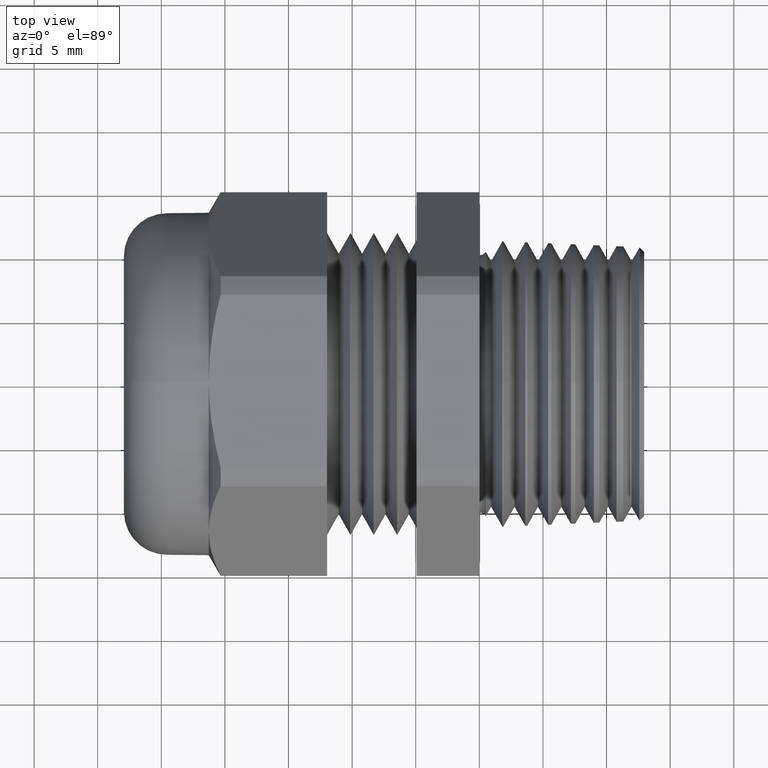
[diagram: clean part render]
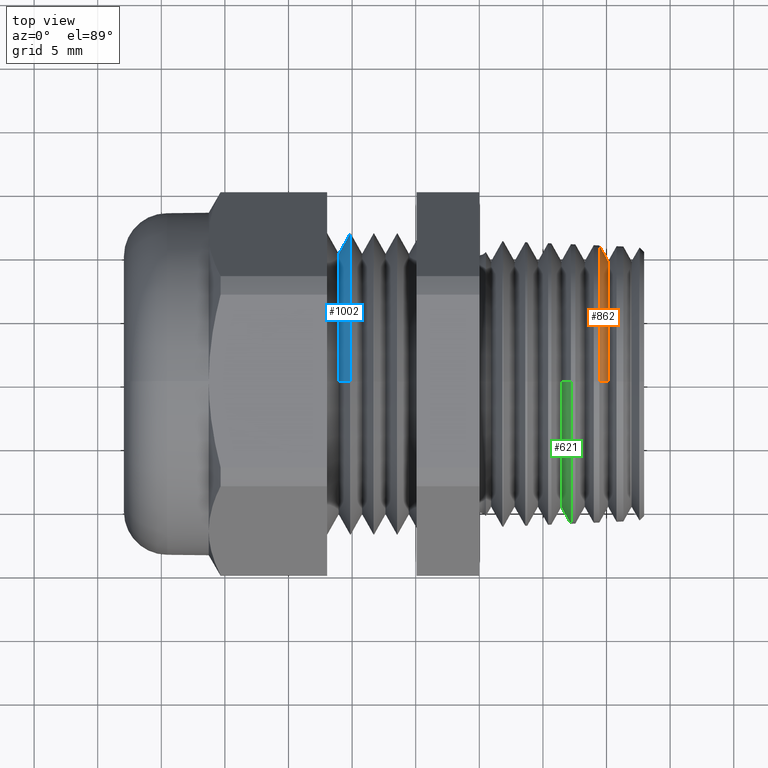
[diagram: same view with three faces highlighted in distinct colors, each labeled with its STEP entity id]
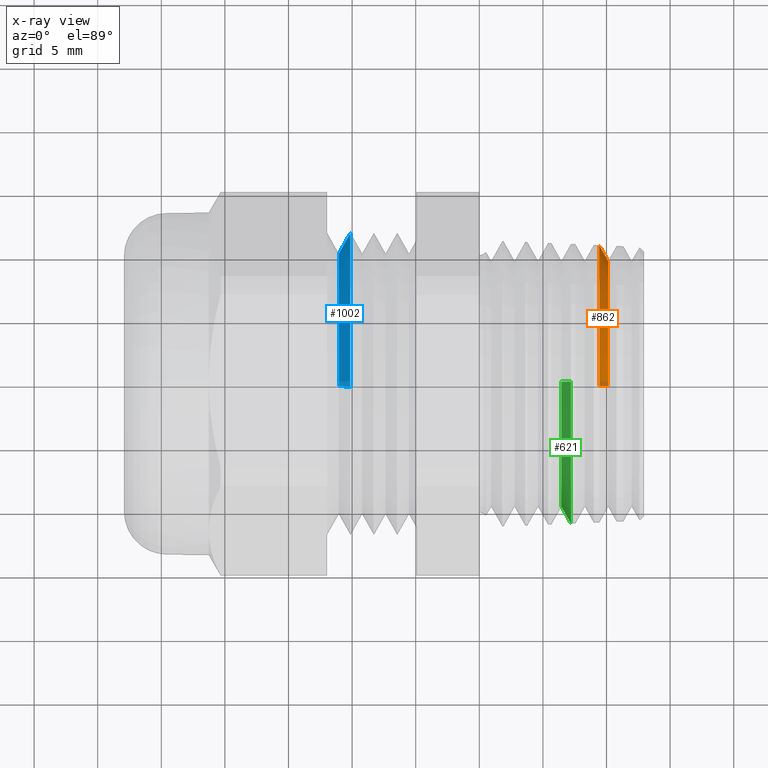
[diagram: x-ray of the same camera — body ghosted, the three highlighted faces saturated]
A machine part, top view with three faces highlighted in distinct colors.
The next image is the same camera in x-ray (body ghosted, the three faces saturated) — at least one of them is partly hidden behind the body in this view.
Their STEP definitions:

[orange] entity #862 — the highlighted conical surface has half-angle 60 deg.
#705 = VERTEX_POINT ( 'NONE', #2373 ) ;
#706 = VERTEX_POINT ( 'NONE', #2372 ) ;
#717 = EDGE_CURVE ( 'NONE', #705, #706, #2418, .T. ) ;
#785 = ORIENTED_EDGE ( 'NONE', *, *, #717, .T. ) ;
#786 = ORIENTED_EDGE ( 'NONE', *, *, #793, .T. ) ;
#787 = VERTEX_POINT ( 'NONE', #2587 ) ;
#793 = EDGE_CURVE ( 'NONE', #706, #787, #2576, .T. ) ;
#850 = ORIENTED_EDGE ( 'NONE', *, *, #851, .T. ) ;
#851 = EDGE_CURVE ( 'NONE', #787, #879, #2657, .T. ) ;
#859 = EDGE_LOOP ( 'NONE', ( #785, #786, #850, #877 ) ) ;
#862 = ADVANCED_FACE ( 'NONE', ( #2703 ), #2698, .T. ) ;
#877 = ORIENTED_EDGE ( 'NONE', *, *, #883, .F. ) ;
#879 = VERTEX_POINT ( 'NONE', #2728 ) ;
#883 = EDGE_CURVE ( 'NONE', #705, #879, #2722, .T. ) ;
#2372 = CARTESIAN_POINT ( 'NONE',  ( 0.3988155841894339700, 4.961415234232701000E-017, -0.3814809735032225800 ) ) ;
#2373 = CARTESIAN_POINT ( 'NONE',  ( 0.3988155841894339700, 0.0000000000000000000, 0.3814809735032225800 ) ) ;
#2415 = DIRECTION ( 'NONE',  ( 0.0000000000000000000, 0.0000000000000000000, 1.000000000000000000 ) ) ;
#2416 = DIRECTION ( 'NONE',  ( -1.000000000000000000, 0.0000000000000000000, 0.0000000000000000000 ) ) ;
#2417 = AXIS2_PLACEMENT_3D ( 'NONE', #2423, #2416, #2415 ) ;
#2418 = CIRCLE ( 'NONE', #2417, 0.3814809735032225800 ) ;
#2423 = CARTESIAN_POINT ( 'NONE',  ( 0.3988155841894339700, 0.0000000000000000000, 0.0000000000000000000 ) ) ;
#2573 = DIRECTION ( 'NONE',  ( -0.4999999999999938400, 1.060575238724911100E-016, -0.8660254037844420400 ) ) ;
#2574 = VECTOR ( 'NONE', #2573, 39.37007874015748900 ) ;
#2575 = CARTESIAN_POINT ( 'NONE',  ( 0.3621428571428571600, 5.449678256205722000E-017, -0.4450000000000000100 ) ) ;
#2576 = LINE ( 'NONE', #2575, #2574 ) ;
#2587 = CARTESIAN_POINT ( 'NONE',  ( 0.3715076957630060700, 5.255681027657015200E-017, -0.4287796237052184900 ) ) ;
#2656 = CARTESIAN_POINT ( 'NONE',  ( 0.3715076957630060700, 0.0000000000000000000, 0.0000000000000000000 ) ) ;
#2657 = CIRCLE ( 'NONE', #2717, 0.4287796237052184900 ) ;
#2694 = DIRECTION ( 'NONE',  ( 0.0000000000000000000, 0.0000000000000000000, 1.000000000000000000 ) ) ;
#2695 = DIRECTION ( 'NONE',  ( -1.000000000000000000, 0.0000000000000000000, 0.0000000000000000000 ) ) ;
#2696 = CARTESIAN_POINT ( 'NONE',  ( 0.3621428571428571600, 0.0000000000000000000, 0.0000000000000000000 ) ) ;
#2697 = AXIS2_PLACEMENT_3D ( 'NONE', #2696, #2695, #2694 ) ;
#2698 = CONICAL_SURFACE ( 'NONE', #2697, 0.4450000000000000100, 1.047197551196604700 ) ;
#2703 = FACE_OUTER_BOUND ( 'NONE', #859, .T. ) ;
#2715 = DIRECTION ( 'NONE',  ( 0.0000000000000000000, 0.0000000000000000000, 1.000000000000000000 ) ) ;
#2716 = DIRECTION ( 'NONE',  ( 1.000000000000000000, 0.0000000000000000000, 0.0000000000000000000 ) ) ;
#2717 = AXIS2_PLACEMENT_3D ( 'NONE', #2656, #2716, #2715 ) ;
#2719 = DIRECTION ( 'NONE',  ( -0.4999999999999938400, 0.0000000000000000000, 0.8660254037844420400 ) ) ;
#2720 = VECTOR ( 'NONE', #2719, 39.37007874015748900 ) ;
#2721 = CARTESIAN_POINT ( 'NONE',  ( 0.3621428571428571600, 0.0000000000000000000, 0.4450000000000000100 ) ) ;
#2722 = LINE ( 'NONE', #2721, #2720 ) ;
#2728 = CARTESIAN_POINT ( 'NONE',  ( 0.3715076957630060700, 0.0000000000000000000, 0.4287796237052184900 ) ) ;

[blue] entity #1002 — the highlighted conical surface has half-angle 60 deg.
#1002 = ADVANCED_FACE ( 'NONE', ( #3002 ), #3001, .T. ) ;
#1003 = EDGE_LOOP ( 'NONE', ( #1057, #1107, #1109, #1047 ) ) ;
#1004 = EDGE_CURVE ( 'NONE', #1005, #1058, #2995, .T. ) ;
#1005 = VERTEX_POINT ( 'NONE', #2991 ) ;
#1043 = EDGE_CURVE ( 'NONE', #1044, #1045, #2266, .T. ) ;
#1044 = VERTEX_POINT ( 'NONE', #3098 ) ;
#1045 = VERTEX_POINT ( 'NONE', #3097 ) ;
#1047 = ORIENTED_EDGE ( 'NONE', *, *, #1048, .F. ) ;
#1048 = EDGE_CURVE ( 'NONE', #1044, #1005, #3096, .T. ) ;
#1057 = ORIENTED_EDGE ( 'NONE', *, *, #1043, .T. ) ;
#1058 = VERTEX_POINT ( 'NONE', #3072 ) ;
#1107 = ORIENTED_EDGE ( 'NONE', *, *, #1108, .T. ) ;
#1108 = EDGE_CURVE ( 'NONE', #1045, #1058, #3180, .T. ) ;
#1109 = ORIENTED_EDGE ( 'NONE', *, *, #1004, .F. ) ;
#2265 = AXIS2_PLACEMENT_3D ( 'NONE', #2525, #2532, #2531 ) ;
#2266 = CIRCLE ( 'NONE', #2265, 0.4045410714285714900 ) ;
#2525 = CARTESIAN_POINT ( 'NONE',  ( -0.4351190642708378000, 0.0000000000000000000, 0.0000000000000000000 ) ) ;
#2531 = DIRECTION ( 'NONE',  ( 0.0000000000000000000, 0.0000000000000000000, -1.000000000000000000 ) ) ;
#2532 = DIRECTION ( 'NONE',  ( 1.000000000000000000, 0.0000000000000000000, 0.0000000000000000000 ) ) ;
#2991 = CARTESIAN_POINT ( 'NONE',  ( -0.3994047952083414300, 5.711752671223256000E-017, -0.4664000000000000400 ) ) ;
#2992 = DIRECTION ( 'NONE',  ( 0.0000000000000000000, 0.0000000000000000000, -1.000000000000000000 ) ) ;
#2993 = DIRECTION ( 'NONE',  ( 1.000000000000000000, 0.0000000000000000000, 0.0000000000000000000 ) ) ;
#2994 = AXIS2_PLACEMENT_3D ( 'NONE', #3000, #2993, #2992 ) ;
#2995 = CIRCLE ( 'NONE', #2994, 0.4664000000000000400 ) ;
#2996 = DIRECTION ( 'NONE',  ( 0.0000000000000000000, 0.0000000000000000000, -1.000000000000000000 ) ) ;
#2997 = DIRECTION ( 'NONE',  ( 1.000000000000000000, 0.0000000000000000000, 0.0000000000000000000 ) ) ;
#2998 = CARTESIAN_POINT ( 'NONE',  ( -0.4351190642708378000, 0.0000000000000000000, 0.0000000000000000000 ) ) ;
#2999 = AXIS2_PLACEMENT_3D ( 'NONE', #2998, #2997, #2996 ) ;
#3000 = CARTESIAN_POINT ( 'NONE',  ( -0.3994047952083414300, 0.0000000000000000000, 0.0000000000000000000 ) ) ;
#3001 = CONICAL_SURFACE ( 'NONE', #2999, 0.4045410714285714900, 1.047197551196594500 ) ;
#3002 = FACE_OUTER_BOUND ( 'NONE', #1003, .T. ) ;
#3072 = CARTESIAN_POINT ( 'NONE',  ( -0.3994047952083414300, 0.0000000000000000000, 0.4664000000000000400 ) ) ;
#3093 = DIRECTION ( 'NONE',  ( 0.5000000000000027800, 0.0000000000000000000, -0.8660254037844369300 ) ) ;
#3094 = VECTOR ( 'NONE', #3093, 39.37007874015748100 ) ;
#3095 = CARTESIAN_POINT ( 'NONE',  ( -0.4351190642708378000, 0.0000000000000000000, -0.4045410714285714900 ) ) ;
#3096 = LINE ( 'NONE', #3095, #3094 ) ;
#3097 = CARTESIAN_POINT ( 'NONE',  ( -0.4351190642708378000, 5.332975976854832300E-017, 0.4045410714285714900 ) ) ;
#3098 = CARTESIAN_POINT ( 'NONE',  ( -0.4351190642708378000, 0.0000000000000000000, -0.4045410714285714900 ) ) ;
#3172 = DIRECTION ( 'NONE',  ( 0.5000000000000027800, 1.060575238724904800E-016, 0.8660254037844369300 ) ) ;
#3173 = VECTOR ( 'NONE', #3172, 39.37007874015748100 ) ;
#3174 = CARTESIAN_POINT ( 'NONE',  ( -0.4351190642708378000, 4.954199282486408100E-017, 0.4045410714285714900 ) ) ;
#3180 = LINE ( 'NONE', #3174, #3173 ) ;

[green] entity #621 — the highlighted conical surface has half-angle 60 deg.
#182 = EDGE_CURVE ( 'NONE', #899, #896, #1527, .T. ) ;
#603 = ORIENTED_EDGE ( 'NONE', *, *, #182, .T. ) ;
#618 = EDGE_CURVE ( 'NONE', #893, #892, #2246, .T. ) ;
#621 = ADVANCED_FACE ( 'NONE', ( #2242 ), #2241, .T. ) ;
#622 = EDGE_LOOP ( 'NONE', ( #623, #624, #625, #603 ) ) ;
#623 = ORIENTED_EDGE ( 'NONE', *, *, #895, .F. ) ;
#624 = ORIENTED_EDGE ( 'NONE', *, *, #618, .F. ) ;
#625 = ORIENTED_EDGE ( 'NONE', *, *, #901, .T. ) ;
#892 = VERTEX_POINT ( 'NONE', #2770 ) ;
#893 = VERTEX_POINT ( 'NONE', #2769 ) ;
#895 = EDGE_CURVE ( 'NONE', #892, #896, #2768, .T. ) ;
#896 = VERTEX_POINT ( 'NONE', #2764 ) ;
#899 = VERTEX_POINT ( 'NONE', #2758 ) ;
#901 = EDGE_CURVE ( 'NONE', #893, #899, #2756, .T. ) ;
#1523 = DIRECTION ( 'NONE',  ( 0.0000000000000000000, 0.0000000000000000000, -1.000000000000000000 ) ) ;
#1524 = DIRECTION ( 'NONE',  ( -1.000000000000000000, 0.0000000000000000000, 0.0000000000000000000 ) ) ;
#1525 = CARTESIAN_POINT ( 'NONE',  ( 0.2834851713742256300, 0.0000000000000000000, 0.0000000000000000000 ) ) ;
#1526 = AXIS2_PLACEMENT_3D ( 'NONE', #1525, #1524, #1523 ) ;
#1527 = CIRCLE ( 'NONE', #1526, 0.4326227701172201700 ) ;
#2236 = DIRECTION ( 'NONE',  ( 0.0000000000000000000, 0.0000000000000000000, -1.000000000000000000 ) ) ;
#2237 = DIRECTION ( 'NONE',  ( 1.000000000000000000, 0.0000000000000000000, 0.0000000000000000000 ) ) ;
#2238 = CARTESIAN_POINT ( 'NONE',  ( 0.2539584413322911200, 0.0000000000000000000, 0.0000000000000000000 ) ) ;
#2239 = AXIS2_PLACEMENT_3D ( 'NONE', #2238, #2237, #2236 ) ;
#2241 = CONICAL_SURFACE ( 'NONE', #2239, 0.3814809735032225800, 1.047197551196596100 ) ;
#2242 = FACE_OUTER_BOUND ( 'NONE', #622, .T. ) ;
#2243 = DIRECTION ( 'NONE',  ( 0.0000000000000000000, 0.0000000000000000000, 1.000000000000000000 ) ) ;
#2244 = DIRECTION ( 'NONE',  ( -1.000000000000000000, 0.0000000000000000000, 0.0000000000000000000 ) ) ;
#2245 = AXIS2_PLACEMENT_3D ( 'NONE', #2251, #2244, #2243 ) ;
#2246 = CIRCLE ( 'NONE', #2245, 0.3814809735032225800 ) ;
#2251 = CARTESIAN_POINT ( 'NONE',  ( 0.2539584413322911200, 0.0000000000000000000, 0.0000000000000000000 ) ) ;
#2753 = DIRECTION ( 'NONE',  ( 0.5000000000000013300, 0.0000000000000000000, -0.8660254037844377100 ) ) ;
#2754 = VECTOR ( 'NONE', #2753, 39.37007874015748900 ) ;
#2755 = CARTESIAN_POINT ( 'NONE',  ( 0.2539584413322911200, 0.0000000000000000000, -0.3814809735032225800 ) ) ;
#2756 = LINE ( 'NONE', #2755, #2754 ) ;
#2758 = CARTESIAN_POINT ( 'NONE',  ( 0.2834851713742256300, 5.298100906623148800E-017, -0.4326227701172201700 ) ) ;
#2764 = CARTESIAN_POINT ( 'NONE',  ( 0.2834851713742256300, 0.0000000000000000000, 0.4326227701172201700 ) ) ;
#2765 = DIRECTION ( 'NONE',  ( 0.5000000000000013300, 1.060575238724905700E-016, 0.8660254037844377100 ) ) ;
#2766 = VECTOR ( 'NONE', #2765, 39.37007874015748900 ) ;
#2767 = CARTESIAN_POINT ( 'NONE',  ( 0.2539584413322911200, 4.671794531363377600E-017, 0.3814809735032225800 ) ) ;
#2768 = LINE ( 'NONE', #2767, #2766 ) ;
#2769 = CARTESIAN_POINT ( 'NONE',  ( 0.2539584413322911200, 5.001143698053440200E-017, -0.3814809735032225800 ) ) ;
#2770 = CARTESIAN_POINT ( 'NONE',  ( 0.2539584413322911200, 0.0000000000000000000, 0.3814809735032225800 ) ) ;